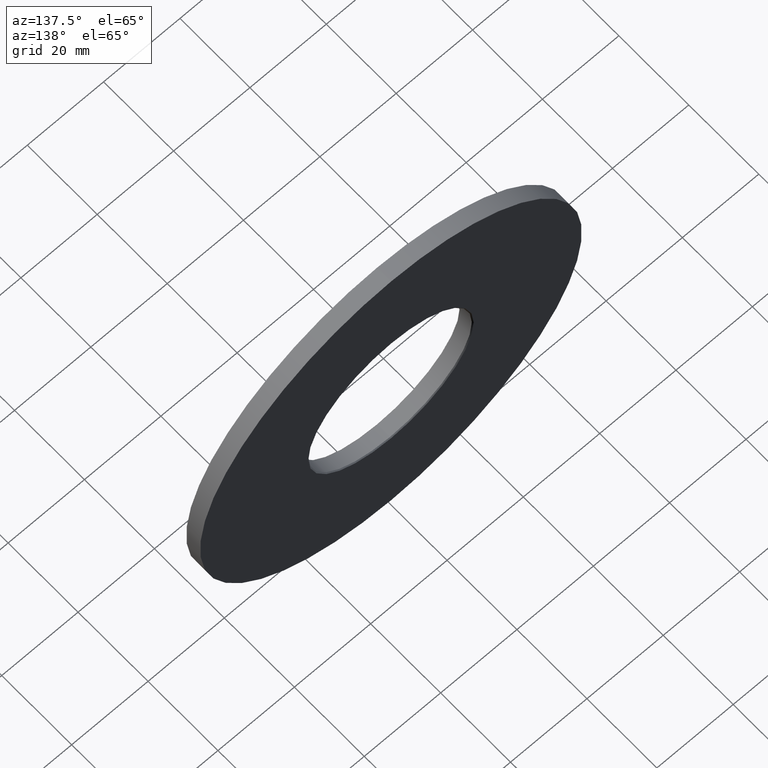
[diagram: clean part render]
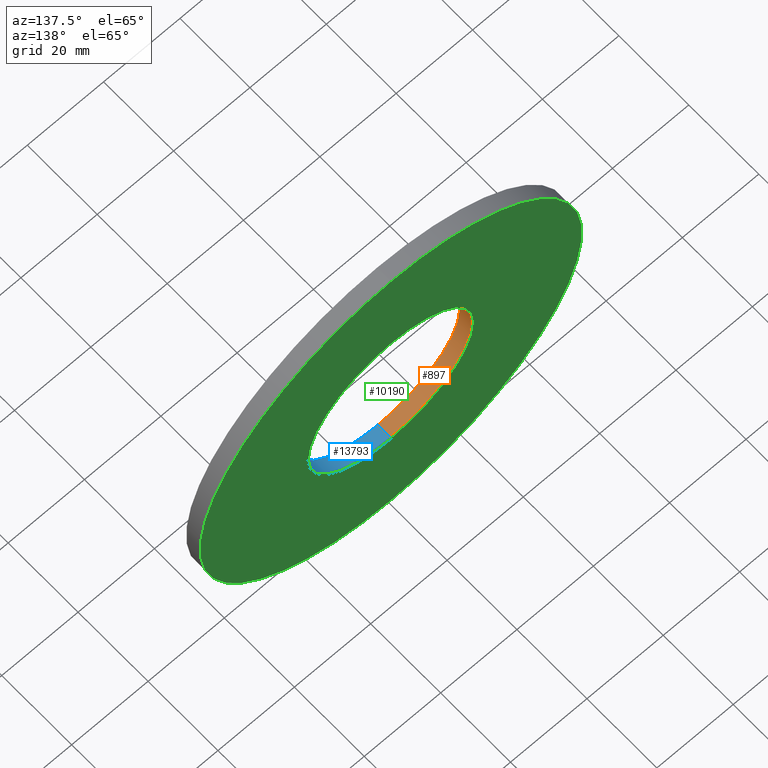
[diagram: same view with three faces highlighted in distinct colors, each labeled with its STEP entity id]
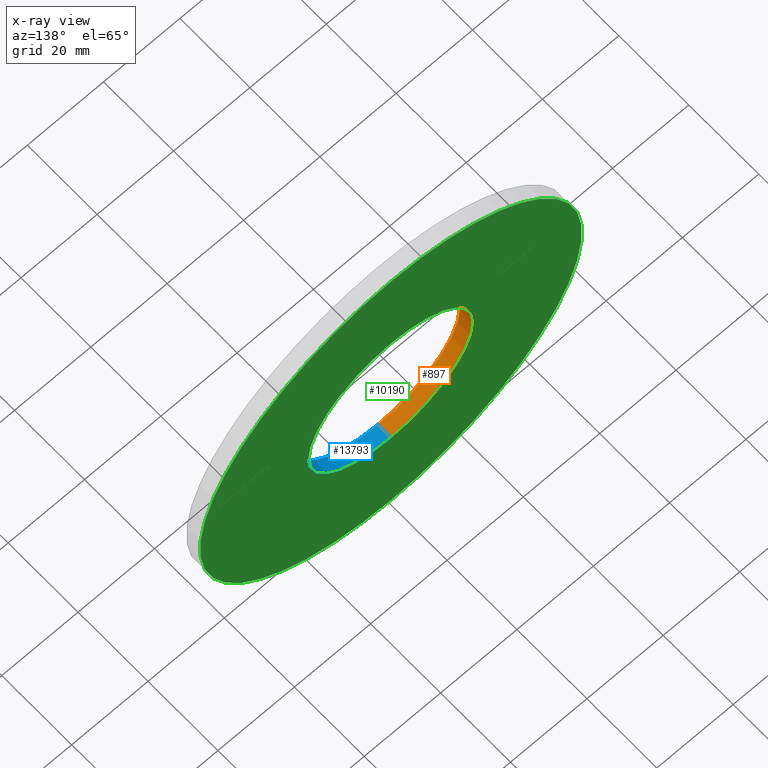
[diagram: x-ray of the same camera — body ghosted, the three highlighted faces saturated]
A machine part, auxiliary view with three faces highlighted in distinct colors.
The next image is the same camera in x-ray (body ghosted, the three faces saturated) — at least one of them is partly hidden behind the body in this view.
Their STEP definitions:

[orange] entity #897 — the highlighted cylindrical surface (partial cylindrical patch) has radius 21.4 mm, axis along (-0, -1, -0).
#20 = DIRECTION ( 'NONE',  ( 0.000000000000000000, 0.000000000000000000, 1.000000000000000000 ) ) ;
#266 = LINE ( 'NONE', #9949, #11808 ) ;
#683 = CYLINDRICAL_SURFACE ( 'NONE', #4769, 21.39999999999999858 ) ;
#897 = ADVANCED_FACE ( 'NONE', ( #8823 ), #683, .F. ) ;
#1260 = CARTESIAN_POINT ( 'NONE',  ( 0.000000000000000000, 0.2499999999999794054, -21.39999999999999858 ) ) ;
#1639 = VERTEX_POINT ( 'NONE', #1260 ) ;
#1644 = LINE ( 'NONE', #4797, #7710 ) ;
#1865 = DIRECTION ( 'NONE',  ( -0.000000000000000000, -1.000000000000000000, -0.000000000000000000 ) ) ;
#2696 = CARTESIAN_POINT ( 'NONE',  ( 2.620744150175335878E-15, 0.2499999999999794054, 21.39999999999999858 ) ) ;
#3002 = EDGE_CURVE ( 'NONE', #8157, #1639, #266, .T. ) ;
#3428 = CIRCLE ( 'NONE', #11207, 21.39999999999999858 ) ;
#3977 = CARTESIAN_POINT ( 'NONE',  ( 0.000000000000000000, 3.749999999999979128, -21.39999999999999858 ) ) ;
#4769 = AXIS2_PLACEMENT_3D ( 'NONE', #12680, #1865, #15395 ) ;
#4797 = CARTESIAN_POINT ( 'NONE',  ( 2.620744150175335878E-15, 4.000000000000000000, 21.39999999999999858 ) ) ;
#4885 = AXIS2_PLACEMENT_3D ( 'NONE', #12030, #5913, #20 ) ;
#5775 = EDGE_CURVE ( 'NONE', #8157, #14397, #3428, .T. ) ;
#5884 = ORIENTED_EDGE ( 'NONE', *, *, #11708, .T. ) ;
#5913 = DIRECTION ( 'NONE',  ( -0.000000000000000000, -1.000000000000000000, -0.000000000000000000 ) ) ;
#6398 = VERTEX_POINT ( 'NONE', #2696 ) ;
#7710 = VECTOR ( 'NONE', #8481, 1000.000000000000000 ) ;
#7864 = ORIENTED_EDGE ( 'NONE', *, *, #8487, .T. ) ;
#8157 = VERTEX_POINT ( 'NONE', #3977 ) ;
#8193 = CIRCLE ( 'NONE', #4885, 21.39999999999999858 ) ;
#8481 = DIRECTION ( 'NONE',  ( -0.000000000000000000, -1.000000000000000000, -0.000000000000000000 ) ) ;
#8487 = EDGE_CURVE ( 'NONE', #14397, #6398, #1644, .T. ) ;
#8823 = FACE_OUTER_BOUND ( 'NONE', #15210, .T. ) ;
#9259 = CARTESIAN_POINT ( 'NONE',  ( 2.620744150175335878E-15, 3.749999999999979128, 21.39999999999999858 ) ) ;
#9949 = CARTESIAN_POINT ( 'NONE',  ( 0.000000000000000000, 4.000000000000000000, -21.39999999999999858 ) ) ;
#10009 = ORIENTED_EDGE ( 'NONE', *, *, #3002, .F. ) ;
#10334 = DIRECTION ( 'NONE',  ( 0.000000000000000000, 1.000000000000000000, 0.000000000000000000 ) ) ;
#10828 = DIRECTION ( 'NONE',  ( -0.000000000000000000, -1.000000000000000000, -0.000000000000000000 ) ) ;
#11207 = AXIS2_PLACEMENT_3D ( 'NONE', #14008, #10334, #12739 ) ;
#11708 = EDGE_CURVE ( 'NONE', #6398, #1639, #8193, .T. ) ;
#11808 = VECTOR ( 'NONE', #10828, 1000.000000000000000 ) ;
#12030 = CARTESIAN_POINT ( 'NONE',  ( 0.000000000000000000, 0.2499999999999794054, 0.000000000000000000 ) ) ;
#12680 = CARTESIAN_POINT ( 'NONE',  ( 0.000000000000000000, 4.000000000000000000, 0.000000000000000000 ) ) ;
#12739 = DIRECTION ( 'NONE',  ( 0.000000000000000000, 0.000000000000000000, 1.000000000000000000 ) ) ;
#14008 = CARTESIAN_POINT ( 'NONE',  ( 0.000000000000000000, 3.749999999999979128, 0.000000000000000000 ) ) ;
#14397 = VERTEX_POINT ( 'NONE', #9259 ) ;
#14508 = ORIENTED_EDGE ( 'NONE', *, *, #5775, .T. ) ;
#15210 = EDGE_LOOP ( 'NONE', ( #14508, #7864, #5884, #10009 ) ) ;
#15395 = DIRECTION ( 'NONE',  ( 0.000000000000000000, 0.000000000000000000, -1.000000000000000000 ) ) ;

[blue] entity #13793 — the highlighted cylindrical surface (partial cylindrical patch) has radius 21.4 mm, axis along (-0, -1, -0).
#120 = DIRECTION ( 'NONE',  ( -0.000000000000000000, -1.000000000000000000, -0.000000000000000000 ) ) ;
#266 = LINE ( 'NONE', #9949, #11808 ) ;
#1221 = CARTESIAN_POINT ( 'NONE',  ( 0.000000000000000000, 4.000000000000000000, 0.000000000000000000 ) ) ;
#1260 = CARTESIAN_POINT ( 'NONE',  ( 0.000000000000000000, 0.2499999999999794054, -21.39999999999999858 ) ) ;
#1311 = ORIENTED_EDGE ( 'NONE', *, *, #4752, .T. ) ;
#1639 = VERTEX_POINT ( 'NONE', #1260 ) ;
#1644 = LINE ( 'NONE', #4797, #7710 ) ;
#1649 = DIRECTION ( 'NONE',  ( 0.000000000000000000, 0.000000000000000000, 1.000000000000000000 ) ) ;
#1704 = DIRECTION ( 'NONE',  ( 0.000000000000000000, 1.000000000000000000, 0.000000000000000000 ) ) ;
#1939 = ORIENTED_EDGE ( 'NONE', *, *, #8487, .F. ) ;
#2696 = CARTESIAN_POINT ( 'NONE',  ( 2.620744150175335878E-15, 0.2499999999999794054, 21.39999999999999858 ) ) ;
#2700 = EDGE_CURVE ( 'NONE', #14397, #8157, #5773, .T. ) ;
#3002 = EDGE_CURVE ( 'NONE', #8157, #1639, #266, .T. ) ;
#3177 = EDGE_LOOP ( 'NONE', ( #1939, #10723, #6042, #1311 ) ) ;
#3263 = AXIS2_PLACEMENT_3D ( 'NONE', #4051, #11204, #14770 ) ;
#3977 = CARTESIAN_POINT ( 'NONE',  ( 0.000000000000000000, 3.749999999999979128, -21.39999999999999858 ) ) ;
#4051 = CARTESIAN_POINT ( 'NONE',  ( 0.000000000000000000, 0.2499999999999794054, 0.000000000000000000 ) ) ;
#4752 = EDGE_CURVE ( 'NONE', #1639, #6398, #13503, .T. ) ;
#4797 = CARTESIAN_POINT ( 'NONE',  ( 2.620744150175335878E-15, 4.000000000000000000, 21.39999999999999858 ) ) ;
#4959 = DIRECTION ( 'NONE',  ( 0.000000000000000000, 0.000000000000000000, -1.000000000000000000 ) ) ;
#5773 = CIRCLE ( 'NONE', #14372, 21.39999999999999858 ) ;
#6042 = ORIENTED_EDGE ( 'NONE', *, *, #3002, .T. ) ;
#6398 = VERTEX_POINT ( 'NONE', #2696 ) ;
#6980 = FACE_OUTER_BOUND ( 'NONE', #3177, .T. ) ;
#7638 = CARTESIAN_POINT ( 'NONE',  ( 0.000000000000000000, 3.749999999999979128, 0.000000000000000000 ) ) ;
#7710 = VECTOR ( 'NONE', #8481, 1000.000000000000000 ) ;
#7745 = CYLINDRICAL_SURFACE ( 'NONE', #9136, 21.39999999999999858 ) ;
#8157 = VERTEX_POINT ( 'NONE', #3977 ) ;
#8481 = DIRECTION ( 'NONE',  ( -0.000000000000000000, -1.000000000000000000, -0.000000000000000000 ) ) ;
#8487 = EDGE_CURVE ( 'NONE', #14397, #6398, #1644, .T. ) ;
#9136 = AXIS2_PLACEMENT_3D ( 'NONE', #1221, #120, #4959 ) ;
#9259 = CARTESIAN_POINT ( 'NONE',  ( 2.620744150175335878E-15, 3.749999999999979128, 21.39999999999999858 ) ) ;
#9949 = CARTESIAN_POINT ( 'NONE',  ( 0.000000000000000000, 4.000000000000000000, -21.39999999999999858 ) ) ;
#10723 = ORIENTED_EDGE ( 'NONE', *, *, #2700, .T. ) ;
#10828 = DIRECTION ( 'NONE',  ( -0.000000000000000000, -1.000000000000000000, -0.000000000000000000 ) ) ;
#11204 = DIRECTION ( 'NONE',  ( -0.000000000000000000, -1.000000000000000000, -0.000000000000000000 ) ) ;
#11808 = VECTOR ( 'NONE', #10828, 1000.000000000000000 ) ;
#13503 = CIRCLE ( 'NONE', #3263, 21.39999999999999858 ) ;
#13793 = ADVANCED_FACE ( 'NONE', ( #6980 ), #7745, .F. ) ;
#14372 = AXIS2_PLACEMENT_3D ( 'NONE', #7638, #1704, #1649 ) ;
#14397 = VERTEX_POINT ( 'NONE', #9259 ) ;
#14770 = DIRECTION ( 'NONE',  ( 0.000000000000000000, 0.000000000000000000, 1.000000000000000000 ) ) ;

[green] entity #10190 — the highlighted planar face has unit normal (0, 1, 0).
#483 = AXIS2_PLACEMENT_3D ( 'NONE', #3012, #5293, #13749 ) ;
#614 = DIRECTION ( 'NONE',  ( 0.000000000000000000, -0.000000000000000000, 1.000000000000000000 ) ) ;
#988 = AXIS2_PLACEMENT_3D ( 'NONE', #8641, #6062, #1170 ) ;
#1170 = DIRECTION ( 'NONE',  ( 0.000000000000000000, 0.000000000000000000, 1.000000000000000000 ) ) ;
#1772 = CARTESIAN_POINT ( 'NONE',  ( 0.000000000000000000, 4.000000000000000000, -50.00000000000000000 ) ) ;
#1807 = ORIENTED_EDGE ( 'NONE', *, *, #9416, .T. ) ;
#2521 = CARTESIAN_POINT ( 'NONE',  ( 0.000000000000000000, 4.000000000000000000, 0.000000000000000000 ) ) ;
#2573 = DIRECTION ( 'NONE',  ( 0.000000000000000000, 0.000000000000000000, 1.000000000000000000 ) ) ;
#2905 = DIRECTION ( 'NONE',  ( 0.000000000000000000, 0.000000000000000000, 1.000000000000000000 ) ) ;
#3012 = CARTESIAN_POINT ( 'NONE',  ( 0.000000000000000000, 4.000000000000000000, 0.000000000000000000 ) ) ;
#3425 = ORIENTED_EDGE ( 'NONE', *, *, #8202, .T. ) ;
#4100 = FACE_BOUND ( 'NONE', #4638, .T. ) ;
#4140 = PLANE ( 'NONE',  #13184 ) ;
#4448 = AXIS2_PLACEMENT_3D ( 'NONE', #2521, #14590, #2573 ) ;
#4473 = FACE_OUTER_BOUND ( 'NONE', #12528, .T. ) ;
#4638 = EDGE_LOOP ( 'NONE', ( #12932, #1807 ) ) ;
#5293 = DIRECTION ( 'NONE',  ( -0.000000000000000000, -1.000000000000000000, -0.000000000000000000 ) ) ;
#6062 = DIRECTION ( 'NONE',  ( -0.000000000000000000, -1.000000000000000000, -0.000000000000000000 ) ) ;
#6600 = EDGE_CURVE ( 'NONE', #12089, #10080, #9647, .T. ) ;
#6768 = CIRCLE ( 'NONE', #988, 21.65000000000003055 ) ;
#7159 = VERTEX_POINT ( 'NONE', #12239 ) ;
#7868 = CARTESIAN_POINT ( 'NONE',  ( 0.000000000000000000, 4.000000000000000000, 0.000000000000000000 ) ) ;
#8056 = CIRCLE ( 'NONE', #483, 21.65000000000003055 ) ;
#8202 = EDGE_CURVE ( 'NONE', #10080, #12089, #12258, .T. ) ;
#8641 = CARTESIAN_POINT ( 'NONE',  ( 0.000000000000000000, 4.000000000000000000, 0.000000000000000000 ) ) ;
#8905 = AXIS2_PLACEMENT_3D ( 'NONE', #8924, #10142, #2905 ) ;
#8924 = CARTESIAN_POINT ( 'NONE',  ( 0.000000000000000000, 4.000000000000000000, 0.000000000000000000 ) ) ;
#9083 = EDGE_CURVE ( 'NONE', #7159, #9517, #8056, .T. ) ;
#9416 = EDGE_CURVE ( 'NONE', #9517, #7159, #6768, .T. ) ;
#9517 = VERTEX_POINT ( 'NONE', #9856 ) ;
#9647 = CIRCLE ( 'NONE', #4448, 50.00000000000000000 ) ;
#9856 = CARTESIAN_POINT ( 'NONE',  ( 2.651360320154023215E-15, 4.000000000000000000, -21.65000000000003055 ) ) ;
#10080 = VERTEX_POINT ( 'NONE', #15483 ) ;
#10142 = DIRECTION ( 'NONE',  ( 0.000000000000000000, 1.000000000000000000, 0.000000000000000000 ) ) ;
#10190 = ADVANCED_FACE ( 'NONE', ( #4100, #4473 ), #4140, .T. ) ;
#10301 = DIRECTION ( 'NONE',  ( 0.000000000000000000, 1.000000000000000000, 0.000000000000000000 ) ) ;
#12089 = VERTEX_POINT ( 'NONE', #1772 ) ;
#12239 = CARTESIAN_POINT ( 'NONE',  ( 0.000000000000000000, 4.000000000000000000, 21.65000000000003055 ) ) ;
#12258 = CIRCLE ( 'NONE', #8905, 50.00000000000000000 ) ;
#12528 = EDGE_LOOP ( 'NONE', ( #13675, #3425 ) ) ;
#12932 = ORIENTED_EDGE ( 'NONE', *, *, #9083, .T. ) ;
#13184 = AXIS2_PLACEMENT_3D ( 'NONE', #7868, #10301, #614 ) ;
#13675 = ORIENTED_EDGE ( 'NONE', *, *, #6600, .T. ) ;
#13749 = DIRECTION ( 'NONE',  ( 0.000000000000000000, 0.000000000000000000, 1.000000000000000000 ) ) ;
#14590 = DIRECTION ( 'NONE',  ( 0.000000000000000000, 1.000000000000000000, 0.000000000000000000 ) ) ;
#15483 = CARTESIAN_POINT ( 'NONE',  ( 6.123233995736766085E-15, 4.000000000000000000, 50.00000000000000000 ) ) ;